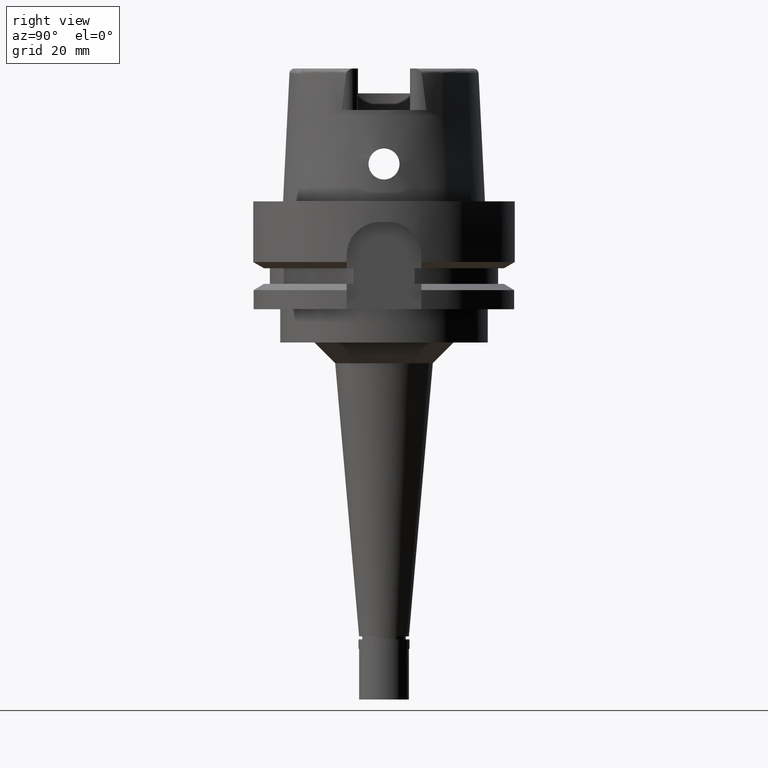
[diagram: clean part render]
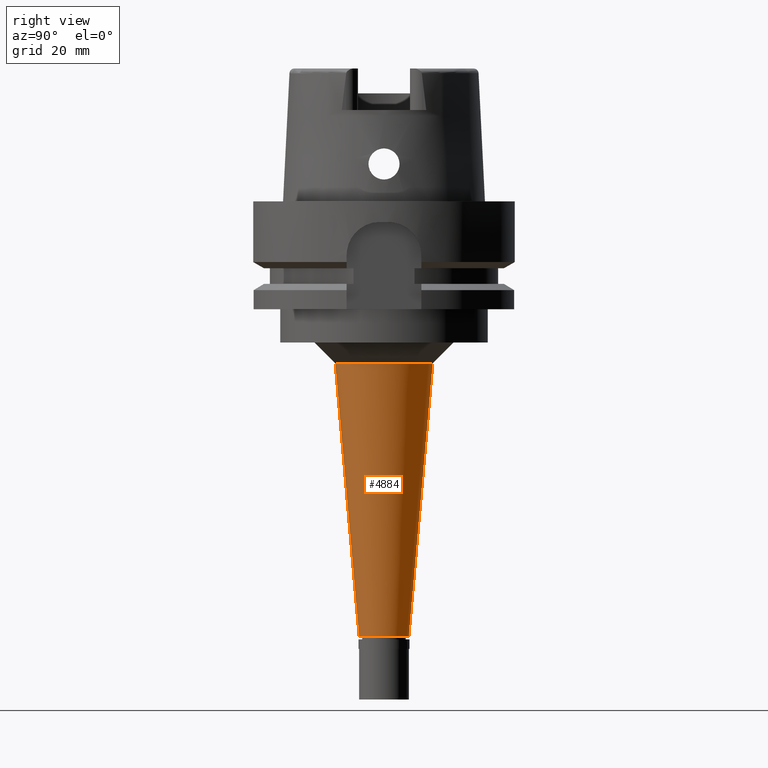
[diagram: same view with one face highlighted and labeled with its STEP entity id]
A machine part, right view. The second image highlights one B-rep face of the part: STEP entity #4884.
In plain terms, the highlighted conical surface has half-angle 5 deg.
Its self-contained STEP definition (entity closure, byte-faithful):
#355 = EDGE_CURVE ( 'NONE', #1722, #4628, #2136, .T. ) ;
#446 = VERTEX_POINT ( 'NONE', #3032 ) ;
#483 = CIRCLE ( 'NONE', #3961, 6.000000000000000000 ) ;
#690 = ORIENTED_EDGE ( 'NONE', *, *, #355, .F. ) ;
#805 = FACE_OUTER_BOUND ( 'NONE', #1793, .T. ) ;
#916 = LINE ( 'NONE', #1002, #4490 ) ;
#1002 = CARTESIAN_POINT ( 'NONE',  ( 0.0000000000000000000, -11.75675406000999956, -39.00000000000000000 ) ) ;
#1057 = CARTESIAN_POINT ( 'NONE',  ( 0.0000000000000000000, 0.0000000000000000000, -104.8000000000000114 ) ) ;
#1287 = CARTESIAN_POINT ( 'NONE',  ( 0.0000000000000000000, 11.75675406000999956, -39.00000000000000000 ) ) ;
#1722 = VERTEX_POINT ( 'NONE', #5122 ) ;
#1793 = EDGE_LOOP ( 'NONE', ( #4891, #5281, #5128, #690 ) ) ;
#1991 = EDGE_CURVE ( 'NONE', #5242, #1722, #2966, .T. ) ;
#2136 = LINE ( 'NONE', #1287, #3674 ) ;
#2243 = CONICAL_SURFACE ( 'NONE', #3842, 8.878377030002999604, 0.08726646259969973729 ) ;
#2317 = CARTESIAN_POINT ( 'NONE',  ( 0.0000000000000000000, 0.0000000000000000000, -39.00000000000000000 ) ) ;
#2798 = CARTESIAN_POINT ( 'NONE',  ( 0.0000000000000000000, 6.000000000000000000, -104.8000000000000114 ) ) ;
#2938 = DIRECTION ( 'NONE',  ( 0.0000000000000000000, 1.000000000000000000, 0.0000000000000000000 ) ) ;
#2966 = CIRCLE ( 'NONE', #5008, 11.75675406000999956 ) ;
#3032 = CARTESIAN_POINT ( 'NONE',  ( 0.0000000000000000000, -6.000000000000000000, -104.8000000000000114 ) ) ;
#3111 = EDGE_CURVE ( 'NONE', #5242, #446, #916, .T. ) ;
#3195 = CARTESIAN_POINT ( 'NONE',  ( 0.0000000000000000000, -11.75675406000999956, -39.00000000000000000 ) ) ;
#3261 = CARTESIAN_POINT ( 'NONE',  ( 0.0000000000000000000, 0.0000000000000000000, -71.90000000000000568 ) ) ;
#3674 = VECTOR ( 'NONE', #3928, 1000.000000000000000 ) ;
#3842 = AXIS2_PLACEMENT_3D ( 'NONE', #3261, #4948, #2938 ) ;
#3908 = DIRECTION ( 'NONE',  ( 0.0000000000000000000, 0.08715574274769373464, -0.9961946980917424366 ) ) ;
#3928 = DIRECTION ( 'NONE',  ( 0.0000000000000000000, -0.08715574274769373464, -0.9961946980917424366 ) ) ;
#3961 = AXIS2_PLACEMENT_3D ( 'NONE', #1057, #5195, #5272 ) ;
#4015 = DIRECTION ( 'NONE',  ( 0.0000000000000000000, -1.000000000000000000, 0.0000000000000000000 ) ) ;
#4048 = EDGE_CURVE ( 'NONE', #446, #4628, #483, .T. ) ;
#4490 = VECTOR ( 'NONE', #3908, 1000.000000000000000 ) ;
#4628 = VERTEX_POINT ( 'NONE', #2798 ) ;
#4884 = ADVANCED_FACE ( 'NONE', ( #805 ), #2243, .T. ) ;
#4891 = ORIENTED_EDGE ( 'NONE', *, *, #1991, .F. ) ;
#4948 = DIRECTION ( 'NONE',  ( 0.0000000000000000000, 0.0000000000000000000, 1.000000000000000000 ) ) ;
#5008 = AXIS2_PLACEMENT_3D ( 'NONE', #2317, #5147, #4015 ) ;
#5122 = CARTESIAN_POINT ( 'NONE',  ( 0.0000000000000000000, 11.75675406000999956, -39.00000000000000000 ) ) ;
#5128 = ORIENTED_EDGE ( 'NONE', *, *, #4048, .T. ) ;
#5147 = DIRECTION ( 'NONE',  ( 0.0000000000000000000, 0.0000000000000000000, 1.000000000000000000 ) ) ;
#5195 = DIRECTION ( 'NONE',  ( 0.0000000000000000000, 0.0000000000000000000, 1.000000000000000000 ) ) ;
#5242 = VERTEX_POINT ( 'NONE', #3195 ) ;
#5272 = DIRECTION ( 'NONE',  ( 0.0000000000000000000, -1.000000000000000000, 0.0000000000000000000 ) ) ;
#5281 = ORIENTED_EDGE ( 'NONE', *, *, #3111, .T. ) ;